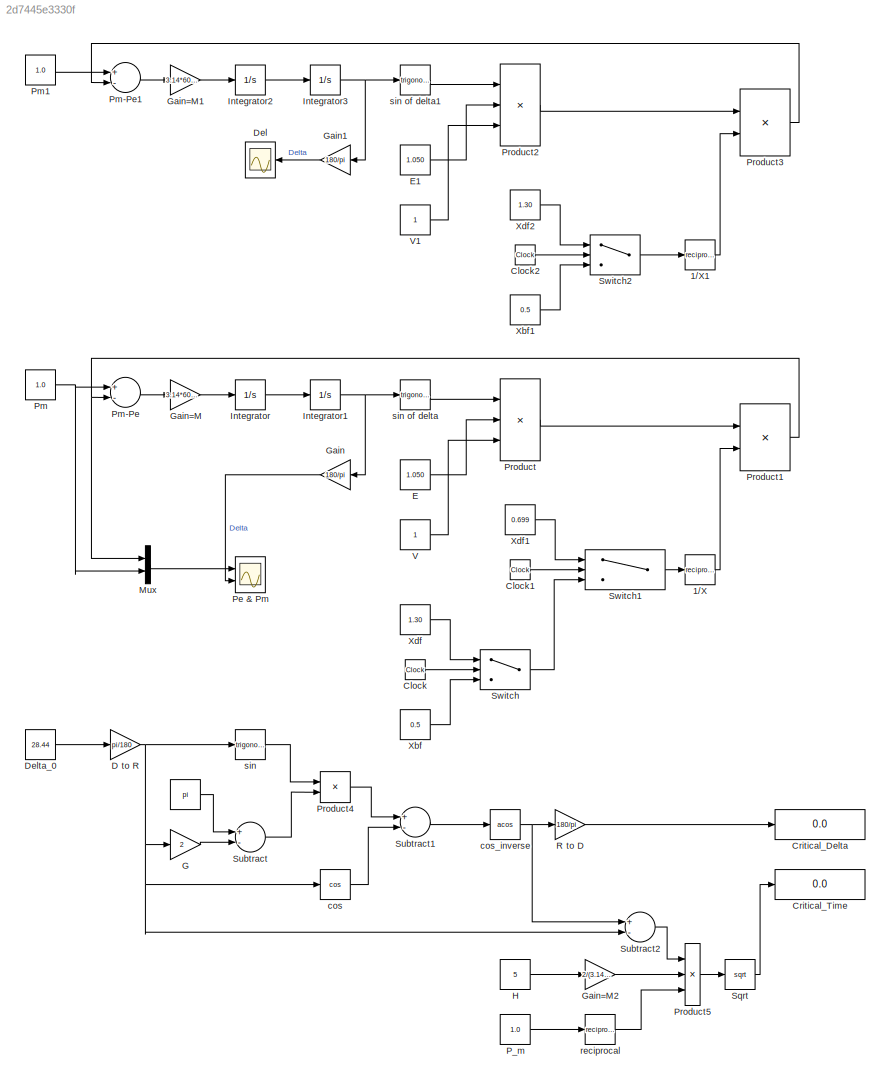
MODEL slx_2d7445e3330f
KIND model
BLOCK [Constant]  
  Value = pi
BLOCK [Math] 1//X
  Operator = reciprocal
  Ports = [1, 1]
BLOCK [Math] 1//X1
  Operator = reciprocal
  Ports = [1, 1]
BLOCK [Clock] Clock
  Decimation = 1
BLOCK [Clock] Clock1
  Decimation = 1
BLOCK [Clock] Clock2
BLOCK [Display] Critical_Delta
  Decimation = 1
  Ports = [1]
BLOCK [Display] Critical_Time
  Decimation = 1
  Ports = [1]
BLOCK [Gain] D to R
  Gain = pi/180
  OutDataTypeStr = Inherit: Inherit via internal rule
  ParamDataTypeStr = Inherit: Inherit via internal rule
  SaturateOnIntegerOverflow = off
BLOCK [Scope] Del
  Floating = off
  NumInputPorts = 1
  Ports = [1]
  ShowLegends = off
BLOCK [Constant] Delta_0
  Value = 28.44
BLOCK [Constant] E
  Value = 1.050
BLOCK [Constant] E1
  Value = 1.050
BLOCK [Gain] G 
  Gain = 2
  OutDataTypeStr = Inherit: Inherit via internal rule
  ParamDataTypeStr = Inherit: Inherit via internal rule
  SaturateOnIntegerOverflow = off
BLOCK [Gain] Gain
  Gain = 180/pi
  OutDataTypeStr = Inherit: Inherit via internal rule
  ParamDataTypeStr = Inherit: Inherit via internal rule
  SaturateOnIntegerOverflow = off
BLOCK [Gain] Gain1
  Gain = 180/pi
  OutDataTypeStr = Inherit: Inherit via internal rule
  ParamDataTypeStr = Inherit: Inherit via internal rule
  SaturateOnIntegerOverflow = off
BLOCK [Gain] Gain=M
  Gain = 3.14*60/5
  OutDataTypeStr = Inherit: Inherit via internal rule
  ParamDataTypeStr = Inherit: Inherit via internal rule
  SaturateOnIntegerOverflow = off
BLOCK [Gain] Gain=M1
  Gain = 3.14*60/5
  OutDataTypeStr = Inherit: Inherit via internal rule
  ParamDataTypeStr = Inherit: Inherit via internal rule
  SaturateOnIntegerOverflow = off
BLOCK [Gain] Gain=M2
  Gain = 2/(3.14*60)
  OutDataTypeStr = Inherit: Inherit via internal rule
  ParamDataTypeStr = Inherit: Inherit via internal rule
  SaturateOnIntegerOverflow = off
BLOCK [Constant] H
  Value = 5
BLOCK [Integrator] Integrator
  Ports = [1, 1]
BLOCK [Integrator] Integrator1
  Ports = [1, 1]
BLOCK [Integrator] Integrator2
  Ports = [1, 1]
BLOCK [Integrator] Integrator3
  Ports = [1, 1]
BLOCK [Mux] Mux
  DisplayOption = bar
  Inputs = 2
  Ports = [2, 1]
BLOCK [Constant] P_m
  Value = 1.0
BLOCK [Scope] Pe & Pm
  Floating = off
  NumInputPorts = 2
  Ports = [2]
  SaveName = ScopeData1
  ShowLegends = off
  YMax = 5~20
  YMin = -5~-5
BLOCK [Constant] Pm
  Value = 1.0
BLOCK [Sum] Pm-Pe
  InputSameDT = off
  Inputs = +-
  OutDataTypeStr = Inherit: Inherit via internal rule
  Ports = [2, 1]
  SaturateOnIntegerOverflow = off
BLOCK [Sum] Pm-Pe1
  InputSameDT = off
  Inputs = +-
  OutDataTypeStr = Inherit: Inherit via internal rule
  Ports = [2, 1]
  SaturateOnIntegerOverflow = off
BLOCK [Constant] Pm1
  Value = 1.0
BLOCK [Product] Product
  InputSameDT = off
  Inputs = 3
  OutDataTypeStr = Inherit: Inherit via internal rule
  Ports = [3, 1]
  RndMeth = Floor
  SaturateOnIntegerOverflow = off
BLOCK [Product] Product1
  InputSameDT = off
  OutDataTypeStr = Inherit: Inherit via internal rule
  Ports = [2, 1]
  RndMeth = Floor
  SaturateOnIntegerOverflow = off
BLOCK [Product] Product2
  InputSameDT = off
  Inputs = 3
  OutDataTypeStr = Inherit: Inherit via internal rule
  Ports = [3, 1]
  RndMeth = Floor
  SaturateOnIntegerOverflow = off
BLOCK [Product] Product3
  InputSameDT = off
  OutDataTypeStr = Inherit: Inherit via internal rule
  Ports = [2, 1]
  RndMeth = Floor
  SaturateOnIntegerOverflow = off
BLOCK [Product] Product4
  InputSameDT = off
  OutDataTypeStr = Inherit: Inherit via internal rule
  Ports = [2, 1]
  RndMeth = Floor
  SaturateOnIntegerOverflow = off
BLOCK [Product] Product5
  InputSameDT = off
  Inputs = 3
  OutDataTypeStr = Inherit: Inherit via internal rule
  Ports = [3, 1]
  RndMeth = Floor
  SaturateOnIntegerOverflow = off
BLOCK [Gain] R to D
  Gain = 180/pi
  OutDataTypeStr = Inherit: Inherit via internal rule
  ParamDataTypeStr = Inherit: Inherit via internal rule
  SaturateOnIntegerOverflow = off
BLOCK [Sqrt] Sqrt
BLOCK [Sum] Subtract
  InputSameDT = off
  Inputs = +-
  OutDataTypeStr = Inherit: Inherit via internal rule
  Ports = [2, 1]
  SaturateOnIntegerOverflow = off
BLOCK [Sum] Subtract1
  InputSameDT = off
  Inputs = +-
  OutDataTypeStr = Inherit: Inherit via internal rule
  Ports = [2, 1]
  SaturateOnIntegerOverflow = off
BLOCK [Sum] Subtract2
  InputSameDT = off
  Inputs = +-
  OutDataTypeStr = Inherit: Inherit via internal rule
  Ports = [2, 1]
  SaturateOnIntegerOverflow = off
BLOCK [Switch] Switch
  Criteria = u2 > Threshold
  InputSameDT = off
  SaturateOnIntegerOverflow = off
  Threshold = 1
BLOCK [Switch] Switch1
  Criteria = u2 > Threshold
  InputSameDT = off
  SaturateOnIntegerOverflow = off
  Threshold = 1.1
BLOCK [Switch] Switch2
  Criteria = u2 > Threshold
  InputSameDT = off
  SaturateOnIntegerOverflow = off
  Threshold = 1
BLOCK [Constant] V
BLOCK [Constant] V1
BLOCK [Constant] Xbf
  Value = 0.5
BLOCK [Constant] Xbf1
  Value = 0.5
BLOCK [Constant] Xdf
  Value = 1.30
BLOCK [Constant] Xdf1
  Value = 0.699
BLOCK [Constant] Xdf2
  Value = 1.30
BLOCK [Trigonometry] cos
  Operator = cos
  Ports = [1, 1]
BLOCK [Trigonometry] cos_inverse
  Operator = acos
  Ports = [1, 1]
BLOCK [Math] reciprocal
  Operator = reciprocal
  Ports = [1, 1]
BLOCK [Trigonometry] sin 
  Ports = [1, 1]
BLOCK [Trigonometry] sin of delta
  Ports = [1, 1]
BLOCK [Trigonometry] sin of delta1
  Ports = [1, 1]
LINE  :1 -> Subtract:1
LINE 1//X1:1 -> Product3:2
LINE 1//X:1 -> Product1:2
LINE Clock1:1 -> Switch1:2
LINE Clock2:1 -> Switch2:2
LINE Clock:1 -> Switch:2
NET D to R:1 -> G :1, Subtract2:2, cos:1, sin :1
LINE Delta_0:1 -> D to R:1
LINE E1:1 -> Product2:2
LINE E:1 -> Product:2
LINE G :1 -> Subtract:2
LINE Gain1:1 -> Del:1
LINE Gain:1 -> Pe & Pm:2
LINE Gain=M1:1 -> Integrator2:1
LINE Gain=M2:1 -> Product5:2
LINE Gain=M:1 -> Integrator:1
LINE H:1 -> Gain=M2:1
NET Integrator1:1 -> Gain:1, sin of delta:1
LINE Integrator2:1 -> Integrator3:1
NET Integrator3:1 -> Gain1:1, sin of delta1:1
LINE Integrator:1 -> Integrator1:1
LINE Mux:1 -> Pe & Pm:1
LINE P_m:1 -> reciprocal:1
LINE Pm-Pe1:1 -> Gain=M1:1
LINE Pm-Pe:1 -> Gain=M:1
LINE Pm1:1 -> Pm-Pe1:1
NET Pm:1 -> Mux:2, Pm-Pe:1
NET Product1:1 -> Mux:1, Pm-Pe:2
LINE Product2:1 -> Product3:1
LINE Product3:1 -> Pm-Pe1:2
LINE Product4:1 -> Subtract1:1
LINE Product5:1 -> Sqrt:1
LINE Product:1 -> Product1:1
LINE R to D:1 -> Critical_Delta:1
LINE Sqrt:1 -> Critical_Time:1
LINE Subtract1:1 -> cos_inverse:1
LINE Subtract2:1 -> Product5:1
LINE Subtract:1 -> Product4:2
LINE Switch1:1 -> 1//X:1
LINE Switch2:1 -> 1//X1:1
LINE Switch:1 -> Switch1:3
LINE V1:1 -> Product2:3
LINE V:1 -> Product:3
LINE Xbf1:1 -> Switch2:3
LINE Xbf:1 -> Switch:3
LINE Xdf1:1 -> Switch1:1
LINE Xdf2:1 -> Switch2:1
LINE Xdf:1 -> Switch:1
LINE cos:1 -> Subtract1:2
NET cos_inverse:1 -> R to D:1, Subtract2:1
LINE reciprocal:1 -> Product5:3
LINE sin :1 -> Product4:1
LINE sin of delta1:1 -> Product2:1
LINE sin of delta:1 -> Product:1
note: NET lines group one-source signal fan-out (src -> all destinations, sorted); 1:1 wires keep LINE
